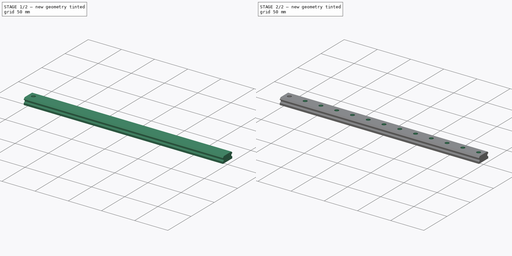
[diagram: build sequence overview — one tinted view per stage of 2, left to right]
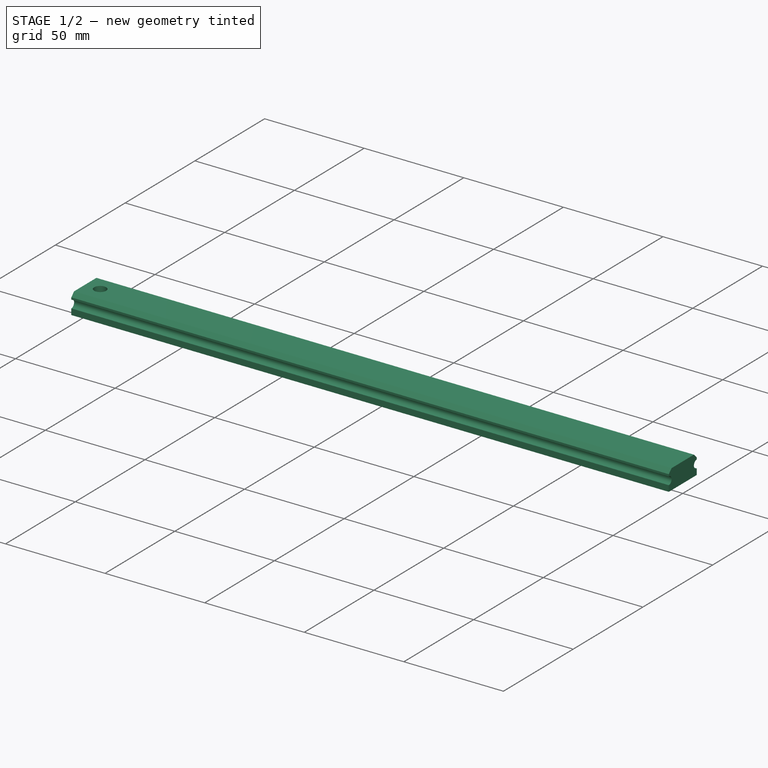
[diagram: stage 1 of 2 — iso view after this stage's code; geometry added in this stage tinted green]
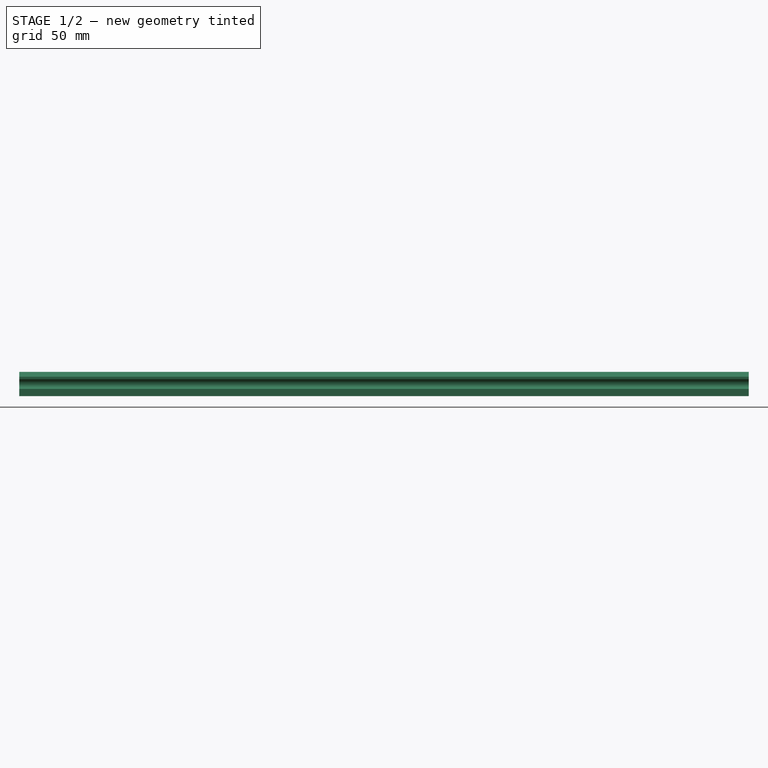
[diagram: stage 1 of 2 — front view after this stage's code; geometry added in this stage tinted green]
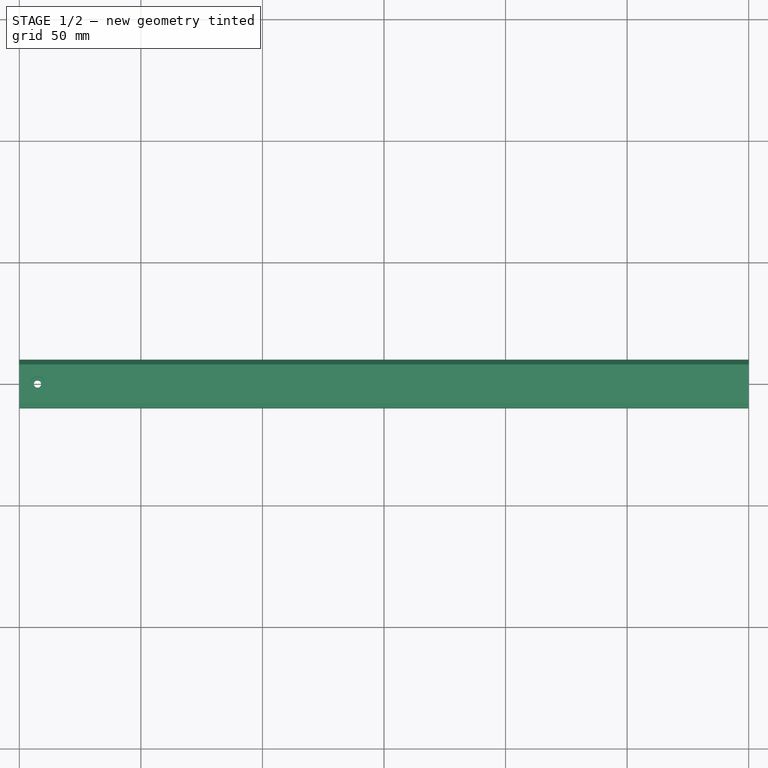
[diagram: stage 1 of 2 — top view after this stage's code; geometry added in this stage tinted green]
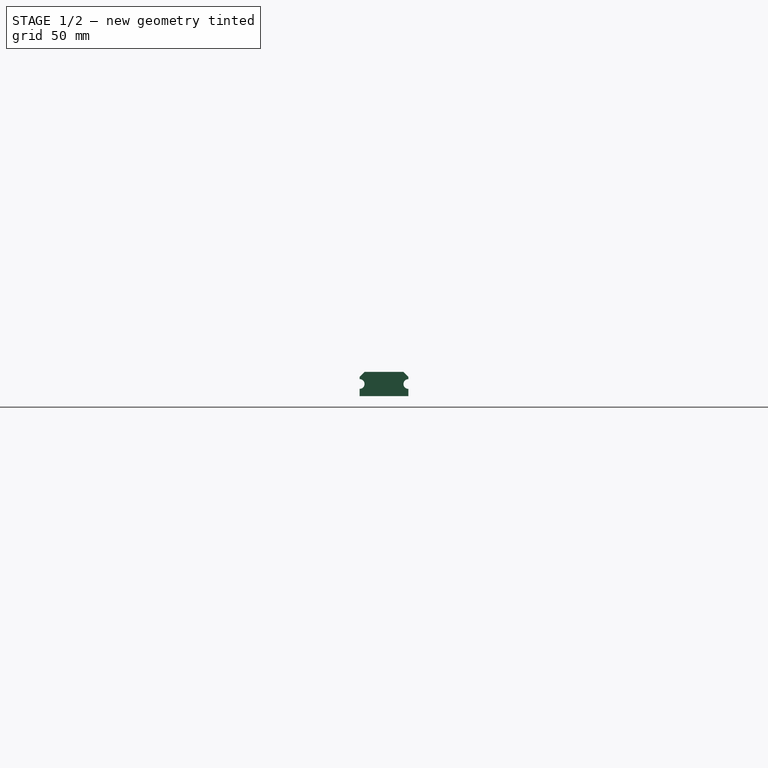
[diagram: stage 1 of 2 — right view after this stage's code; geometry added in this stage tinted green]
FCSTD DOCUMENT  (FreeCAD 0.21R33771 (Git))
Label: LinearRail
License: All rights reserved
LicenseURL: http://en.wikipedia.org/wiki/All_rights_reserved
objects: Sketcher::SketchObject×2, PartDesign::Pad×1, Spreadsheet::Sheet×1, PartDesign::Hole×1, PartDesign::LinearPattern×1, PartDesign::Body×1
note: 8 computed .brp shape members not serialized (recipe doc carries the construction recipe); baked Part::Feature solids carry a one-line shape summary decoded from their .brp

FEATURE [Sketcher::SketchObject] Sketch
  FullyConstrained = true
  MapMode = 5
  Placement = pos=(0,0,0) rot=(0.57735,0.57735,0.57735;2.0944rad)
  Support = -> [YZ_Plane]
  expr: Constraints[14] = 180 - 45
  expr: Constraints[21] = <<Variables>>.G2
  expr: Constraints[30] = <<Variables>>.F2
  sketch-geometry (12):
    g0: LineSegment StartX=-10 StartY=-5 StartZ=0 EndX=-10 EndY=-2 EndZ=0
    g1: LineSegment StartX=-8 StartY=5 StartZ=0 EndX=8 EndY=5 EndZ=0
    g2: LineSegment StartX=10 StartY=3 StartZ=0 EndX=10 EndY=2 EndZ=0
    g3: LineSegment StartX=10 StartY=-5 StartZ=0 EndX=-10 EndY=-5 EndZ=0
    g4: GeomPoint X=0 Y=0 Z=0
    g5: ArcOfCircle CenterX=-10 CenterY=1e-16 CenterZ=0 NormalX=0 NormalY=0 NormalZ=1 AngleXU=0 Radius=2 StartAngle=4.71239 EndAngle=7.85398
    g6: ArcOfCircle CenterX=10 CenterY=0 CenterZ=0 NormalX=0 NormalY=0 NormalZ=1 AngleXU=0 Radius=2 StartAngle=1.5708 EndAngle=4.71239
    g7: LineSegment StartX=-10 StartY=3 StartZ=0 EndX=-8 EndY=5 EndZ=0
    g8: LineSegment StartX=8 StartY=5 StartZ=0 EndX=10 EndY=3 EndZ=0
    g9: LineSegment StartX=-10 StartY=2 StartZ=0 EndX=-10 EndY=3 EndZ=0
    g10: LineSegment StartX=10 StartY=-2 StartZ=0 EndX=10 EndY=-5 EndZ=0
    g11: LineSegment StartX=-10 StartY=-5 StartZ=0 EndX=-10 EndY=5 EndZ=0
  constraints (32):
    c: Coincident(g10,g3)
    c: Coincident(g3,g0)
    c: Vertical(g0)
    c: Vertical(g2)
    c: Coincident(g4,g-1)
    c: Equal(g5,g6)
    c: Coincident(g9,g7)
    c: Coincident(g1,g7)
    c: Coincident(g0,g5)
    c: Coincident(g9,g5)
    c: Coincident(g2,g6)
    c: Coincident(g10,g6)
    c: Coincident(g2,g8)
    c: Coincident(g1,g8)
    c: Angle(g9,g7) = 2.35619
    c: Symmetric(g1,g1,g-2)
    c: Symmetric(g7,g2,g-2)
    c: Vertical(g9)
    c: Vertical(g5,g0)
    c: Vertical(g2,g6)
    c: Symmetric(g0,g3,g-2)
    c: DistanceY(g0,g1) = 10
    c: DistanceY(g7,g1) = 2
    c: DistanceY(g5,g7) = 1
    c: Vertical(g5,g5)
    c: Vertical(g6,g2)
    c: Coincident(g11,g0)
    c: Horizontal(g1,g11)
    c: Equal(g9,g2)
    c: Symmetric(g11,g0,g-1)
    c: DistanceX(g0,g3) = 20
    c: Diameter(g5) = 4
FEATURE [PartDesign::Pad] Pad
  Direction = (1,-2e-16,3e-16)
  Length = 300
  Length2 = 10
  Midplane = true
  Placement = pos=(0,0,0) rot=(1,1,1;2.0944rad)
  Profile = -> Sketch
  ReferenceAxis = -> Sketch [N_Axis]
  Type = 0
  expr: Length = <<Variables>>.E2
FEATURE [Spreadsheet::Sheet] Spreadsheet  label="Variables"
  cells = B1='Diameter; C1='Spacing; D1='Quantity; E1='Lenght; F1='Width; G1='Height; B2=3; C2=7.5; D2=13; E2=300; F2=20; G2=10
FEATURE [Sketcher::SketchObject] Sketch001
  ExternalGeometry = -> [Pad]
  FullyConstrained = true
  MapMode = 5
  Placement = pos=(-1.9e-15,2.8e-15,5) rot=(0,0,-1;1.5708rad)
  Support = -> [Pad]
  expr: Constraints[1] = <<Variables>>.C2
  expr: Constraints[2] = <<Variables>>.B2
  sketch-geometry (1):
    g0: Circle CenterX=0 CenterY=-142.5 CenterZ=0 NormalX=0 NormalY=0 NormalZ=1 AngleXU=0 Radius=1.5
  constraints (3):
    c: PointOnObject(g0,g-2)
    c: DistanceY(g-3,g0) = 7.5
    c: Diameter(g0) = 3
FEATURE [PartDesign::Hole] Hole
  BaseFeature = -> Pad
  CustomThreadClearance = 0
  Depth = 25
  DepthType = 0
  Diameter = 3
  DrillForDepth = false
  DrillPoint = 1
  DrillPointAngle = 118
  HoleCutCountersinkAngle = 90
  HoleCutCustomValues = false
  HoleCutDepth = 5.4
  HoleCutDiameter = 6
  HoleCutType = 1
  ModelThread = false
  Placement = pos=(0,0,0) rot=(1,1,1;2.0944rad)
  Profile = -> Sketch001
  Tapered = false
  TaperedAngle = 90
  ThreadClass = 0
  ThreadDepth = 25
  ThreadDepthType = 0
  ThreadDirection = 0
  ThreadFit = 0
  ThreadSize = 0
  ThreadType = 0
  Threaded = false
  UseCustomThreadClearance = false
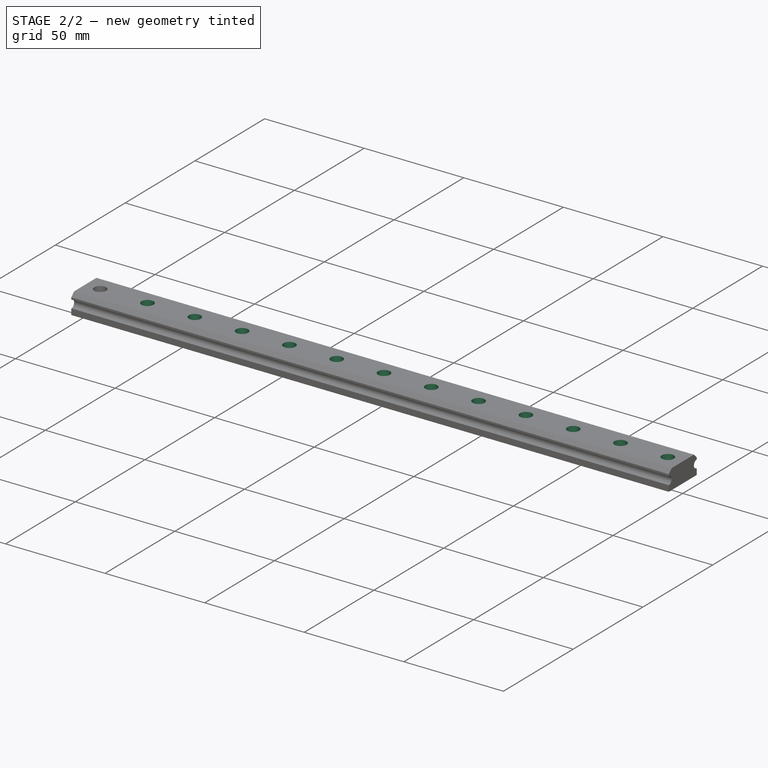
[diagram: stage 2 of 2 — iso view after this stage's code; geometry added in this stage tinted green]
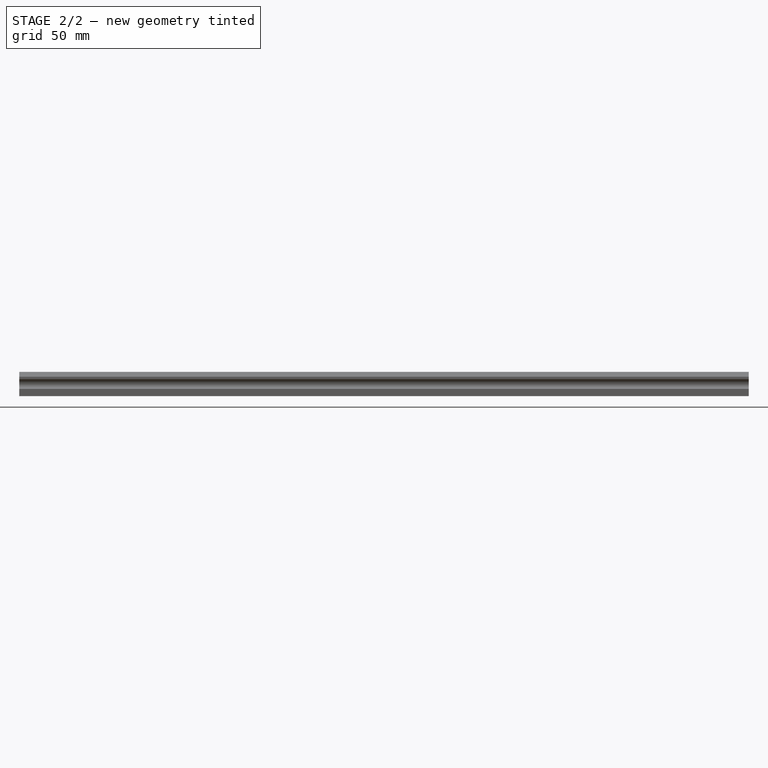
[diagram: stage 2 of 2 — front view after this stage's code; geometry added in this stage tinted green]
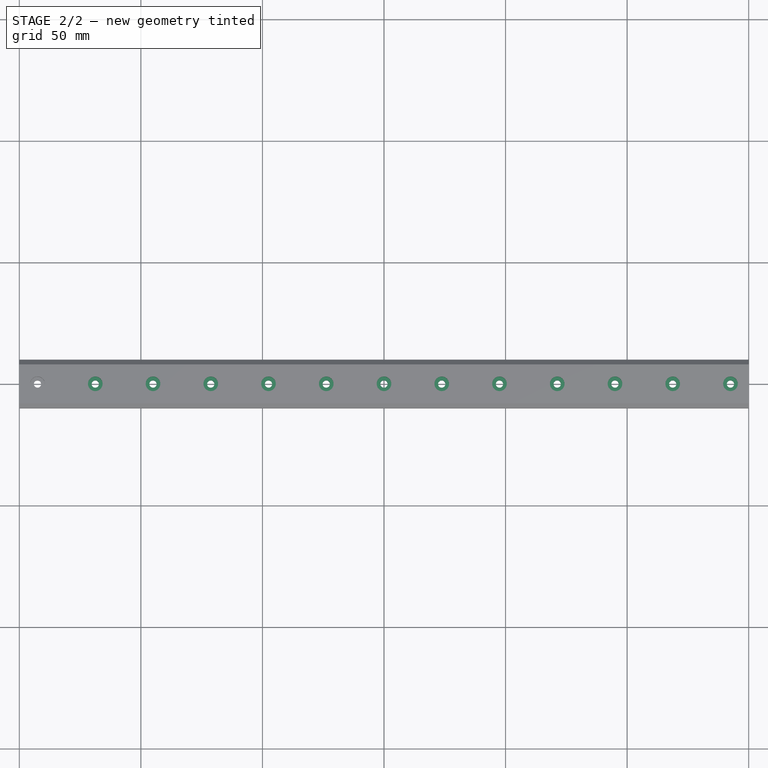
[diagram: stage 2 of 2 — top view after this stage's code; geometry added in this stage tinted green]
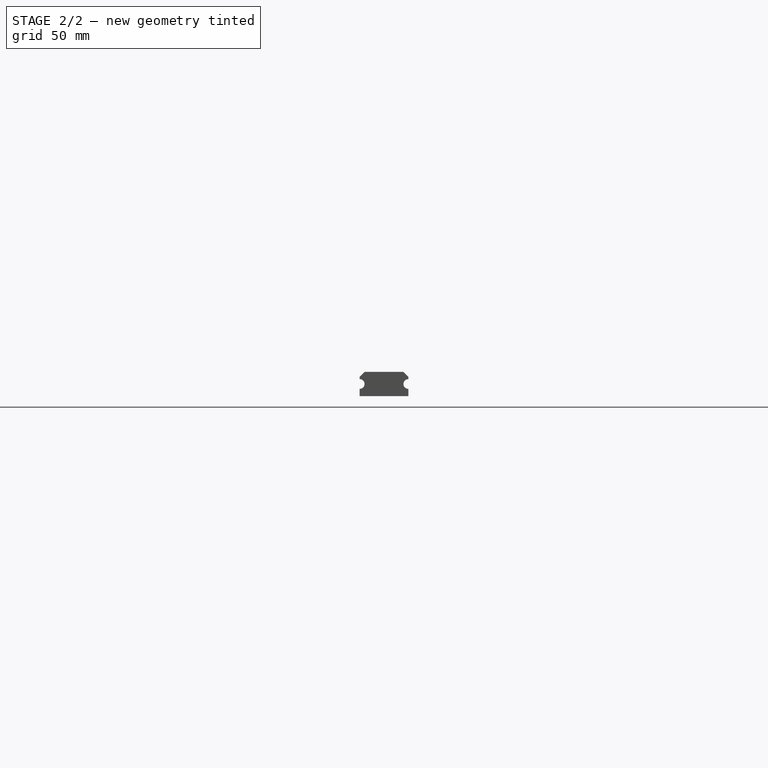
[diagram: stage 2 of 2 — right view after this stage's code; geometry added in this stage tinted green]
FEATURE [PartDesign::LinearPattern] LinearPattern
  BaseFeature = -> Hole
  Direction = -> Hole [Edge30]
  Length = 285
  Occurrences = 13
  Originals = -> [Hole]
  Placement = pos=(0,0,0) rot=(1,1,1;2.0944rad)
  expr: Length = <<Variables>>.E2 - <<Variables>>.C2 * 2
  expr: Occurrences = <<Variables>>.D2
FEATURE [PartDesign::Body] Body
  Group = -> [Sketch,Pad,Sketch001,Hole,LinearPattern]
  Origin = -> Origin
  Tip = -> LinearPattern
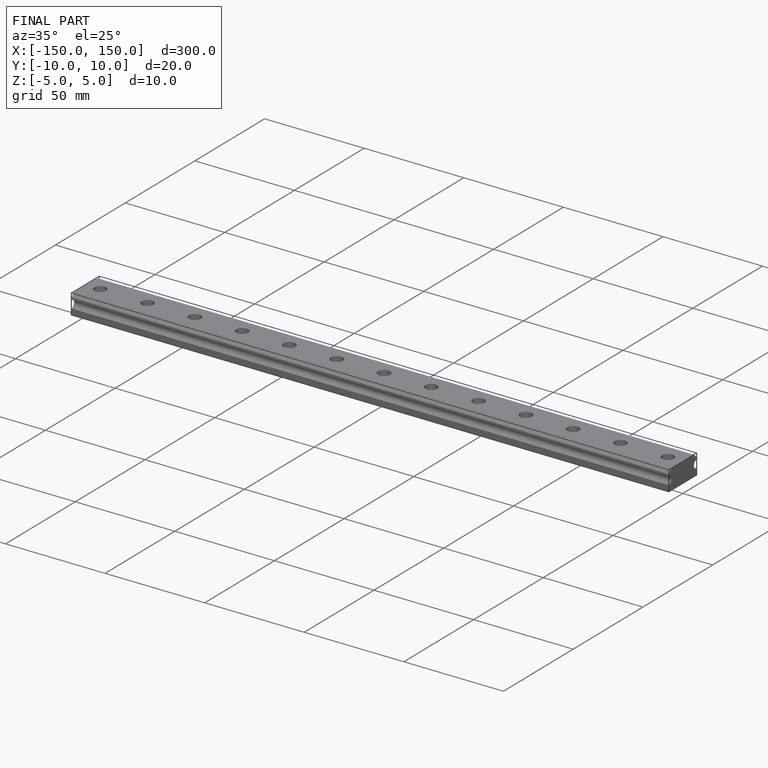
[diagram: finished part — iso view with bounding-box wireframe]
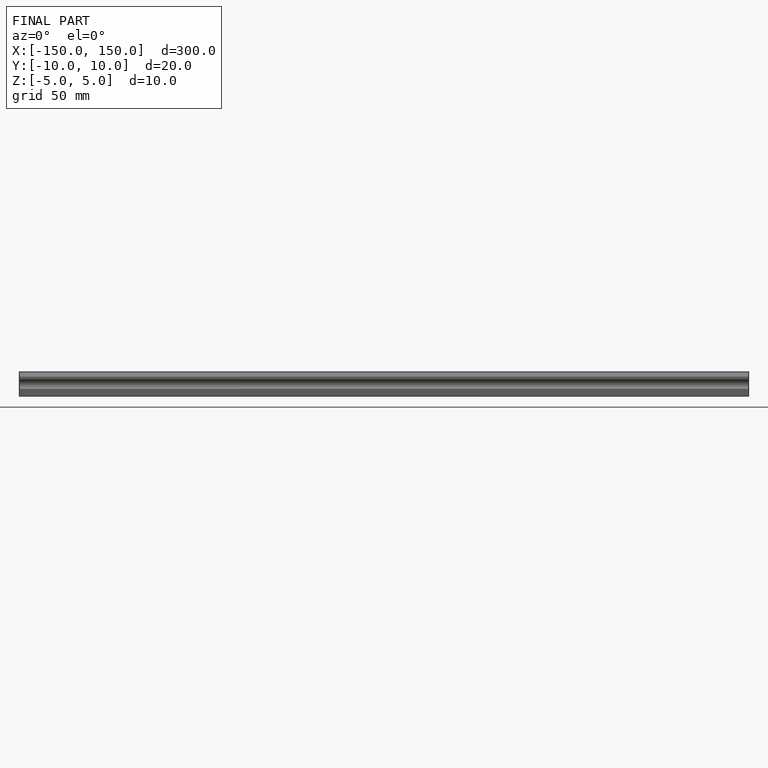
[diagram: finished part — front view with bounding-box wireframe]
